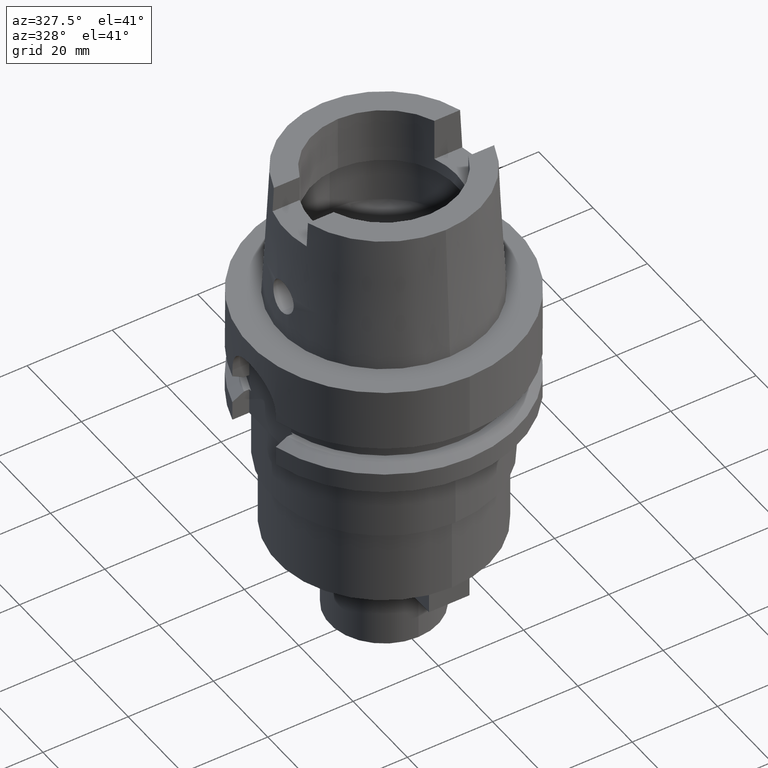
[diagram: clean part render]
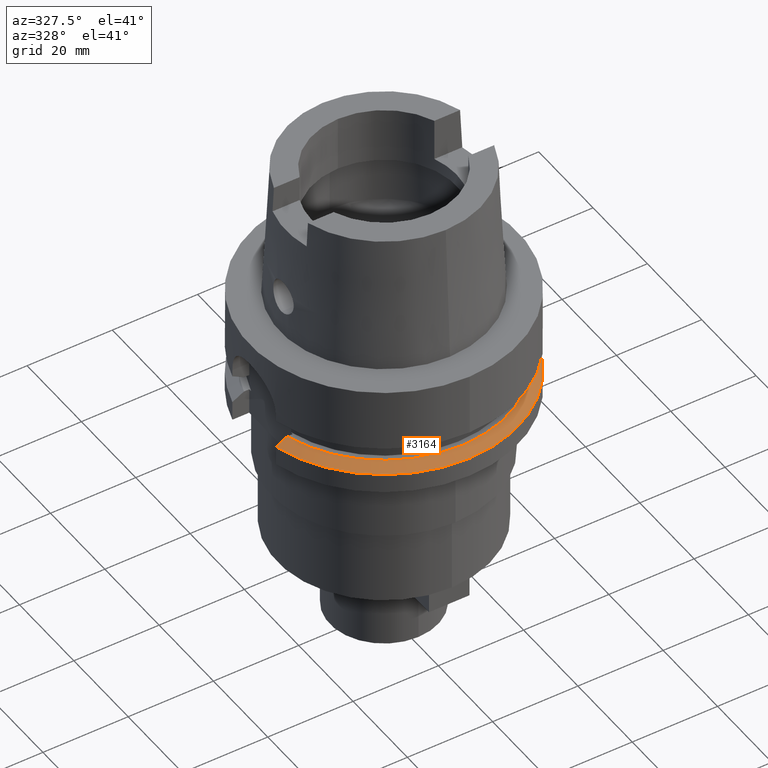
[diagram: same view with one face highlighted and labeled with its STEP entity id]
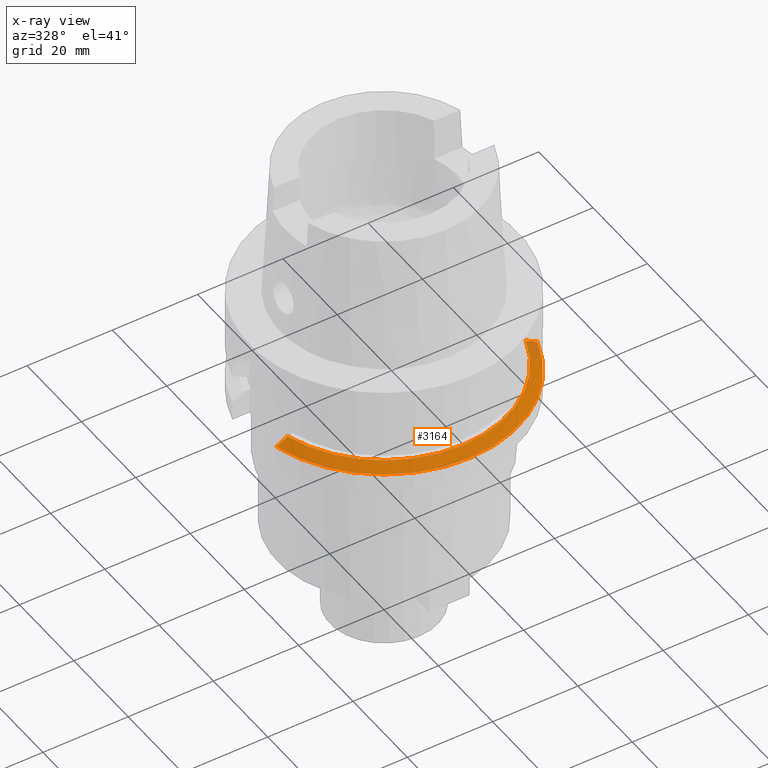
[diagram: x-ray of the same camera — body ghosted, the highlighted face saturated]
A machine part, auxiliary view. The second image highlights one B-rep face of the part: STEP entity #3164.
The next image is the same camera in x-ray: the body ghosted, the highlighted face saturated — about 4% of this face is hidden behind the body in this view.
In plain terms, the highlighted conical surface has half-angle 60 deg.
Its self-contained STEP definition (entity closure, byte-faithful):
#883=CARTESIAN_POINT('',(3.018691773991E1,-8.999999853544E0,-2.137749789350E1));
#884=CARTESIAN_POINT('',(2.988425156631E1,-8.999999853544E0,-2.121003774280E1));
#885=CARTESIAN_POINT('',(2.927875692412E1,-8.999999971023E0,-2.087540621567E1));
#886=CARTESIAN_POINT('',(2.836989118964E1,-9.000000321104E0,-2.037459677319E1));
#887=CARTESIAN_POINT('',(2.776361428502E1,-8.999999270076E0,-2.004137406673E1));
#888=CARTESIAN_POINT('',(2.746036357286E1,-8.999999270076E0,-1.9875E1));
#921=CARTESIAN_POINT('',(-2.776816327024E1,-8.000000141645E0,-1.9875E1));
#922=CARTESIAN_POINT('',(-2.806829964071E1,-8.000000141645E0,
-2.004151121169E1));
#923=CARTESIAN_POINT('',(-2.866838158666E1,-7.999999997126E0,
-2.037486219368E1));
#924=CARTESIAN_POINT('',(-2.956806966192E1,-7.999999797590E0,
-2.087567845631E1));
#925=CARTESIAN_POINT('',(-3.016752196092E1,-8.000000474206E0,
-2.121015964007E1));
#926=CARTESIAN_POINT('',(-3.046719534865E1,-8.000000474206E0,
-2.137750337971E1));
#961=CARTESIAN_POINT('',(0.E0,0.E0,-1.9875E1));
#962=DIRECTION('',(0.E0,0.E0,-1.E0));
#963=DIRECTION('',(9.502643111725E-1,-3.114446000686E-1,0.E0));
#964=AXIS2_PLACEMENT_3D('',#961,#962,#963);
#969=CARTESIAN_POINT('',(0.E0,0.E0,-1.9875E1));
#970=DIRECTION('',(0.E0,0.E0,-1.E0));
#971=DIRECTION('',(0.E0,-1.E0,0.E0));
#972=AXIS2_PLACEMENT_3D('',#969,#970,#971);
#991=CARTESIAN_POINT('',(0.E0,0.E0,-2.137749907476E1));
#992=DIRECTION('',(0.E0,0.E0,-1.E0));
#993=DIRECTION('',(9.583148474999E-1,-2.857142857143E-1,0.E0));
#994=AXIS2_PLACEMENT_3D('',#991,#992,#993);
#999=CARTESIAN_POINT('',(0.E0,0.E0,-2.137749907476E1));
#1000=DIRECTION('',(0.E0,0.E0,-1.E0));
#1001=DIRECTION('',(0.E0,-1.E0,0.E0));
#1002=AXIS2_PLACEMENT_3D('',#999,#1000,#1001);
#2378=CARTESIAN_POINT('',(-3.046719534865E1,-8.000000474206E0,
-2.137750337971E1));
#2379=VERTEX_POINT('',#2378);
#2380=CARTESIAN_POINT('',(3.018691769625E1,-9.E0,-2.137749907476E1));
#2381=CARTESIAN_POINT('',(0.E0,-3.15E1,-2.137749907476E1));
#2382=VERTEX_POINT('',#2380);
#2383=VERTEX_POINT('',#2381);
#2394=CARTESIAN_POINT('',(-2.776816327024E1,-8.000000141645E0,-1.9875E1));
#2395=VERTEX_POINT('',#2394);
#2428=CARTESIAN_POINT('',(0.E0,-2.889759526419E1,-1.9875E1));
#2429=VERTEX_POINT('',#2428);
#2430=CARTESIAN_POINT('',(2.746035345827E1,-9.E0,-1.9875E1));
#2431=VERTEX_POINT('',#2430);
#3151=CARTESIAN_POINT('',(0.E0,0.E0,-2.062624953738E1));
#3152=DIRECTION('',(0.E0,0.E0,-1.E0));
#3153=DIRECTION('',(0.E0,-1.E0,0.E0));
#3154=AXIS2_PLACEMENT_3D('',#3151,#3152,#3153);
#3155=CONICAL_SURFACE('',#3154,3.019879763210E1,6.E1);
#3156=ORIENTED_EDGE('',*,*,#3111,.F.);
#3157=ORIENTED_EDGE('',*,*,#3131,.F.);
#3158=ORIENTED_EDGE('',*,*,#3129,.F.);
#3159=ORIENTED_EDGE('',*,*,#3077,.F.);
#3160=ORIENTED_EDGE('',*,*,#3094,.T.);
#3161=ORIENTED_EDGE('',*,*,#3092,.T.);
#3162=EDGE_LOOP('',(#3156,#3157,#3158,#3159,#3160,#3161));
#3163=FACE_OUTER_BOUND('',#3162,.F.);
#889=B_SPLINE_CURVE_WITH_KNOTS('',3,(#883,#884,#885,#886,#887,#888),
.UNSPECIFIED.,.F.,.F.,(4,1,1,4),(0.E0,3.333333333333E-1,6.666666666667E-1,1.E0),
.UNSPECIFIED.);
#927=B_SPLINE_CURVE_WITH_KNOTS('',3,(#921,#922,#923,#924,#925,#926),
.UNSPECIFIED.,.F.,.F.,(4,1,1,4),(0.E0,3.333333333333E-1,6.666666666667E-1,1.E0),
.UNSPECIFIED.);
#965=CIRCLE('',#964,2.889759526419E1);
#973=CIRCLE('',#972,2.889759526419E1);
#995=CIRCLE('',#994,3.15E1);
#1003=CIRCLE('',#1002,3.15E1);
#3077=EDGE_CURVE('',#2382,#2431,#889,.T.);
#3092=EDGE_CURVE('',#2383,#2379,#1003,.T.);
#3094=EDGE_CURVE('',#2382,#2383,#995,.T.);
#3111=EDGE_CURVE('',#2395,#2379,#927,.T.);
#3129=EDGE_CURVE('',#2431,#2429,#965,.T.);
#3131=EDGE_CURVE('',#2429,#2395,#973,.T.);
#3164=ADVANCED_FACE('',(#3163),#3155,.T.);